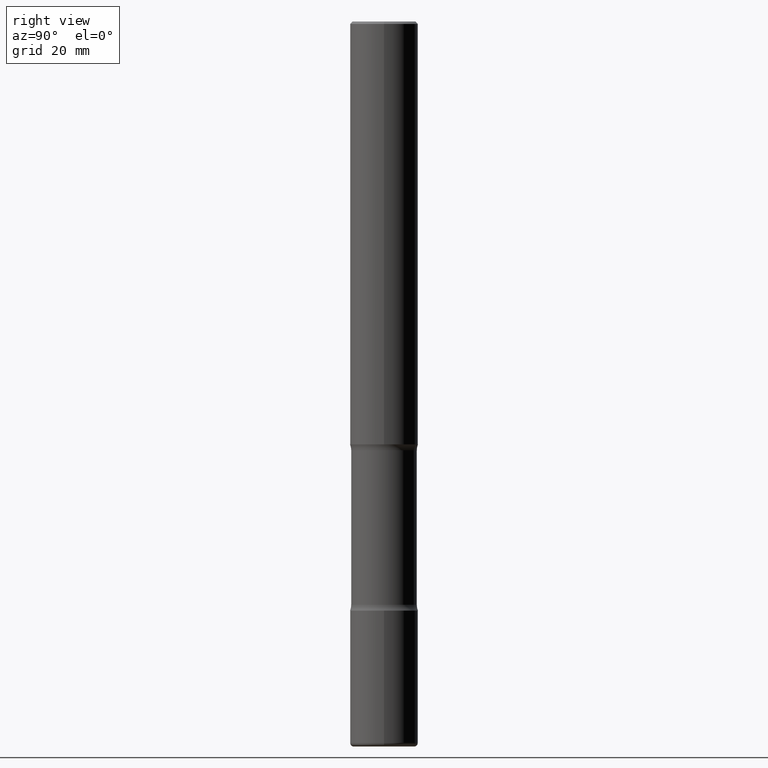
[diagram: clean part render]
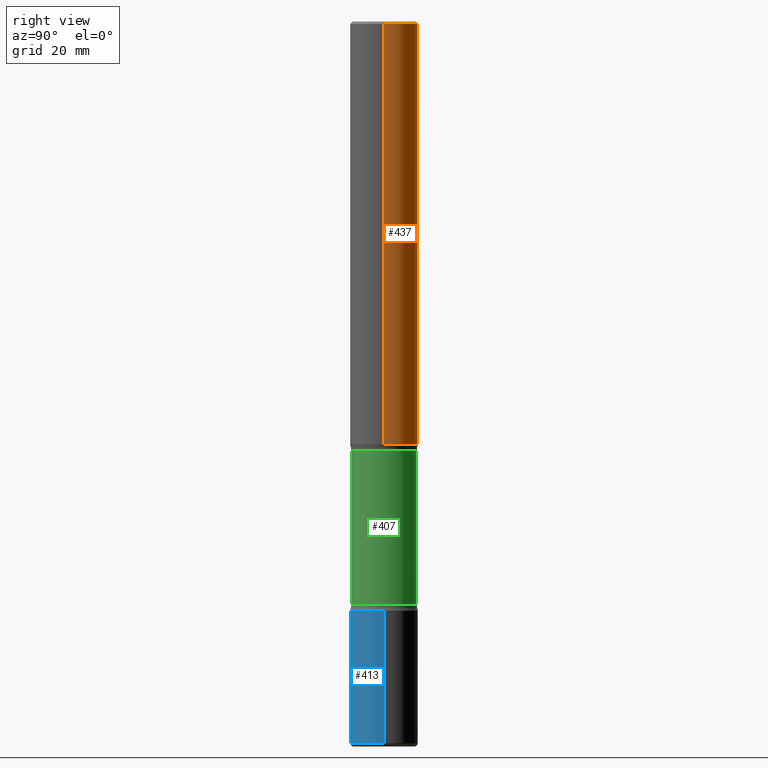
[diagram: same view with three faces highlighted in distinct colors, each labeled with its STEP entity id]
A machine part, right view with three faces highlighted in distinct colors.
Their STEP definitions:

[orange] entity #437 — the highlighted cylindrical surface (edge-blend (fillet) strip) has radius 7.1438 mm, axis along (-0, 0, 1).
#12 = DIRECTION ( 'NONE',  ( -2.445468806185136597E-29, 3.491481338843145583E-15, 1.000000000000000000 ) ) ;
#13 = EDGE_CURVE ( 'NONE', #408, #396, #46, .T. ) ;
#44 = EDGE_CURVE ( 'NONE', #408, #175, #240, .T. ) ;
#46 = LINE ( 'NONE', #394, #68 ) ;
#52 = DIRECTION ( 'NONE',  ( -2.445468806185136877E-29, 3.491481338843145188E-15, 1.000000000000000000 ) ) ;
#56 = EDGE_LOOP ( 'NONE', ( #438, #123, #425, #541 ) ) ;
#66 = AXIS2_PLACEMENT_3D ( 'NONE', #274, #12, #488 ) ;
#68 = VECTOR ( 'NONE', #52, 39.37007874015748143 ) ;
#79 = VERTEX_POINT ( 'NONE', #499 ) ;
#97 = CARTESIAN_POINT ( 'NONE',  ( 4.890937612370273159E-31, -6.982962677686291609E-17, -0.02000000000000000042 ) ) ;
#123 = ORIENTED_EDGE ( 'NONE', *, *, #341, .T. ) ;
#173 = CIRCLE ( 'NONE', #231, 0.2812500000000002220 ) ;
#175 = VERTEX_POINT ( 'NONE', #261 ) ;
#194 = CARTESIAN_POINT ( 'NONE',  ( 0.2812500000000002220, -1.999344688650107733E-15, -0.02000000000000000042 ) ) ;
#196 = DIRECTION ( 'NONE',  ( -2.445468806185136597E-29, 3.491481338843145583E-15, 1.000000000000000000 ) ) ;
#231 = AXIS2_PLACEMENT_3D ( 'NONE', #97, #196, #314 ) ;
#232 = DIRECTION ( 'NONE',  ( -2.445468806185136597E-29, 3.491481338843145583E-15, 1.000000000000000000 ) ) ;
#240 = CIRCLE ( 'NONE', #503, 0.2812500000000004441 ) ;
#241 = FACE_OUTER_BOUND ( 'NONE', #56, .T. ) ;
#261 = CARTESIAN_POINT ( 'NONE',  ( -0.2812500000000004441, -4.146605712038649025E-15, -3.500000000000000444 ) ) ;
#274 = CARTESIAN_POINT ( 'NONE',  ( 0.000000000000000000, 0.000000000000000000, 0.000000000000000000 ) ) ;
#314 = DIRECTION ( 'NONE',  ( 1.000000000000000000, -6.982962677686265133E-15, 0.000000000000000000 ) ) ;
#319 = DIRECTION ( 'NONE',  ( -2.445468806185136877E-29, 3.491481338843145188E-15, 1.000000000000000000 ) ) ;
#341 = EDGE_CURVE ( 'NONE', #175, #79, #351, .T. ) ;
#351 = LINE ( 'NONE', #439, #540 ) ;
#358 = CARTESIAN_POINT ( 'NONE',  ( 0.2812500000000004441, -1.418414293905027580E-14, -3.500000000000000444 ) ) ;
#373 = EDGE_CURVE ( 'NONE', #396, #79, #173, .T. ) ;
#394 = CARTESIAN_POINT ( 'NONE',  ( 0.2812500000000003331, -1.963958253099264484E-15, 1.371424718192608413E-29 ) ) ;
#396 = VERTEX_POINT ( 'NONE', #194 ) ;
#408 = VERTEX_POINT ( 'NONE', #358 ) ;
#425 = ORIENTED_EDGE ( 'NONE', *, *, #373, .F. ) ;
#437 = ADVANCED_FACE ( 'NONE', ( #241 ), #478, .T. ) ;
#438 = ORIENTED_EDGE ( 'NONE', *, *, #44, .T. ) ;
#439 = CARTESIAN_POINT ( 'NONE',  ( -0.2812500000000003331, 1.998401444325284139E-15, -1.383450494134193670E-29 ) ) ;
#478 = CYLINDRICAL_SURFACE ( 'NONE', #66, 0.2812500000000003331 ) ;
#479 = CARTESIAN_POINT ( 'NONE',  ( 8.559140821647978089E-29, -1.222018468595101092E-14, -3.500000000000000444 ) ) ;
#488 = DIRECTION ( 'NONE',  ( 1.000000000000000000, -6.982962677686265133E-15, 4.876176775795935232E-29 ) ) ;
#499 = CARTESIAN_POINT ( 'NONE',  ( -0.2812500000000002220, 1.894128626322401186E-15, -0.02000000000000000042 ) ) ;
#502 = DIRECTION ( 'NONE',  ( 1.000000000000000000, -6.982962677686265133E-15, 0.000000000000000000 ) ) ;
#503 = AXIS2_PLACEMENT_3D ( 'NONE', #479, #232, #502 ) ;
#540 = VECTOR ( 'NONE', #319, 39.37007874015748143 ) ;
#541 = ORIENTED_EDGE ( 'NONE', *, *, #13, .F. ) ;

[blue] entity #413 — the highlighted cylindrical surface (edge-blend (fillet) strip) has radius 7.1438 mm, axis along (-0, 0, 1).
#11 = CARTESIAN_POINT ( 'NONE',  ( -0.2812500000000003886, 1.998401444325284534E-15, -1.383450494134194230E-29 ) ) ;
#23 = CARTESIAN_POINT ( 'NONE',  ( 0.2812500000000003886, -1.963958253099265273E-15, 1.371424718192608693E-29 ) ) ;
#24 = VERTEX_POINT ( 'NONE', #170 ) ;
#35 = ORIENTED_EDGE ( 'NONE', *, *, #366, .F. ) ;
#58 = DIRECTION ( 'NONE',  ( -2.445468806185136597E-29, 3.491481338843145583E-15, 1.000000000000000000 ) ) ;
#60 = VERTEX_POINT ( 'NONE', #198 ) ;
#72 = EDGE_CURVE ( 'NONE', #154, #162, #402, .T. ) ;
#76 = EDGE_CURVE ( 'NONE', #154, #24, #400, .T. ) ;
#82 = AXIS2_PLACEMENT_3D ( 'NONE', #135, #405, #440 ) ;
#98 = CYLINDRICAL_SURFACE ( 'NONE', #201, 0.2812500000000003886 ) ;
#135 = CARTESIAN_POINT ( 'NONE',  ( 1.192166043015254091E-28, -1.702097152686033664E-14, -4.875000000000000000 ) ) ;
#154 = VERTEX_POINT ( 'NONE', #260 ) ;
#162 = VERTEX_POINT ( 'NONE', #303 ) ;
#170 = CARTESIAN_POINT ( 'NONE',  ( -0.2812500000000003331, -1.693415611555167306E-14, -4.875000000000000000 ) ) ;
#192 = EDGE_LOOP ( 'NONE', ( #371, #336, #226, #35 ) ) ;
#193 = AXIS2_PLACEMENT_3D ( 'NONE', #506, #451, #542 ) ;
#198 = CARTESIAN_POINT ( 'NONE',  ( 0.2812500000000003331, -1.898492977995960152E-14, -4.875000000000000000 ) ) ;
#201 = AXIS2_PLACEMENT_3D ( 'NONE', #434, #58, #360 ) ;
#209 = VECTOR ( 'NONE', #497, 39.37007874015748143 ) ;
#226 = ORIENTED_EDGE ( 'NONE', *, *, #508, .T. ) ;
#260 = CARTESIAN_POINT ( 'NONE',  ( -0.2812500000000005551, -1.884574214856829125E-14, -5.969999999999999751 ) ) ;
#303 = CARTESIAN_POINT ( 'NONE',  ( 0.2812500000000005551, -2.280810184599284737E-14, -5.969999999999999751 ) ) ;
#336 = ORIENTED_EDGE ( 'NONE', *, *, #72, .T. ) ;
#360 = DIRECTION ( 'NONE',  ( 1.000000000000000000, -6.982962677686266711E-15, 4.876176775795935232E-29 ) ) ;
#363 = FACE_OUTER_BOUND ( 'NONE', #192, .T. ) ;
#366 = EDGE_CURVE ( 'NONE', #24, #60, #527, .T. ) ;
#371 = ORIENTED_EDGE ( 'NONE', *, *, #76, .F. ) ;
#377 = DIRECTION ( 'NONE',  ( -2.445468806185136877E-29, 3.491481338843145188E-15, 1.000000000000000000 ) ) ;
#400 = LINE ( 'NONE', #11, #529 ) ;
#402 = CIRCLE ( 'NONE', #193, 0.2812500000000004441 ) ;
#405 = DIRECTION ( 'NONE',  ( -2.445468806185136597E-29, 3.491481338843145583E-15, 1.000000000000000000 ) ) ;
#413 = ADVANCED_FACE ( 'NONE', ( #363 ), #98, .T. ) ;
#434 = CARTESIAN_POINT ( 'NONE',  ( 0.000000000000000000, 0.000000000000000000, 0.000000000000000000 ) ) ;
#440 = DIRECTION ( 'NONE',  ( 1.000000000000000000, -6.982962677686268288E-15, 0.000000000000000000 ) ) ;
#451 = DIRECTION ( 'NONE',  ( -2.445468806185136597E-29, 3.491481338843145583E-15, 1.000000000000000000 ) ) ;
#497 = DIRECTION ( 'NONE',  ( -2.445468806185136877E-29, 3.491481338843145188E-15, 1.000000000000000000 ) ) ;
#506 = CARTESIAN_POINT ( 'NONE',  ( 1.459944877292526494E-28, -2.084414359289357934E-14, -5.969999999999999751 ) ) ;
#508 = EDGE_CURVE ( 'NONE', #162, #60, #543, .T. ) ;
#527 = CIRCLE ( 'NONE', #82, 0.2812500000000003331 ) ;
#529 = VECTOR ( 'NONE', #377, 39.37007874015748143 ) ;
#542 = DIRECTION ( 'NONE',  ( 1.000000000000000000, -6.982962677686265133E-15, 0.000000000000000000 ) ) ;
#543 = LINE ( 'NONE', #23, #209 ) ;

[green] entity #407 — the highlighted cylindrical surface (edge-blend (fillet) strip) has radius 6.8961 mm, axis along (0, -0, -1).
#1 = LINE ( 'NONE', #132, #150 ) ;
#18 = CARTESIAN_POINT ( 'NONE',  ( 1.895874366991938652E-15, 0.2714999999999830882, -4.826601265512413086 ) ) ;
#29 = VERTEX_POINT ( 'NONE', #411 ) ;
#87 = CARTESIAN_POINT ( 'NONE',  ( 8.565988301991969532E-29, -1.254885679582893261E-14, -3.548398734487589135 ) ) ;
#91 = LINE ( 'NONE', #424, #393 ) ;
#101 = CIRCLE ( 'NONE', #312, 0.2715000000000000191 ) ;
#107 = ORIENTED_EDGE ( 'NONE', *, *, #195, .T. ) ;
#110 = AXIS2_PLACEMENT_3D ( 'NONE', #554, #125, #306 ) ;
#125 = DIRECTION ( 'NONE',  ( 2.529525800553503552E-29, -3.371106938680637457E-15, -1.000000000000000000 ) ) ;
#132 = CARTESIAN_POINT ( 'NONE',  ( 1.895874366991969024E-15, 0.2714999999999791469, -6.000000000000001776 ) ) ;
#138 = CYLINDRICAL_SURFACE ( 'NONE', #272, 0.2715000000000000191 ) ;
#150 = VECTOR ( 'NONE', #171, 39.37007874015748143 ) ;
#171 = DIRECTION ( 'NONE',  ( 2.529525800553503552E-29, -3.371106938680637457E-15, -1.000000000000000000 ) ) ;
#186 = EDGE_CURVE ( 'NONE', #334, #29, #101, .T. ) ;
#195 = EDGE_CURVE ( 'NONE', #29, #537, #91, .T. ) ;
#202 = EDGE_CURVE ( 'NONE', #334, #514, #1, .T. ) ;
#227 = FACE_OUTER_BOUND ( 'NONE', #452, .T. ) ;
#242 = EDGE_CURVE ( 'NONE', #514, #537, #368, .T. ) ;
#262 = DIRECTION ( 'NONE',  ( 6.982962677686266711E-15, 1.000000000000000000, -4.024822090113094462E-15 ) ) ;
#272 = AXIS2_PLACEMENT_3D ( 'NONE', #524, #276, #321 ) ;
#276 = DIRECTION ( 'NONE',  ( 2.529525800553503552E-29, -3.371106938680637457E-15, -1.000000000000000000 ) ) ;
#306 = DIRECTION ( 'NONE',  ( 6.982962677686266711E-15, 1.000000000000000000, -4.024822090113095251E-15 ) ) ;
#312 = AXIS2_PLACEMENT_3D ( 'NONE', #87, #460, #262 ) ;
#321 = DIRECTION ( 'NONE',  ( 6.982962677686265133E-15, 1.000000000000000000, -4.024822090113094462E-15 ) ) ;
#334 = VERTEX_POINT ( 'NONE', #347 ) ;
#347 = CARTESIAN_POINT ( 'NONE',  ( 1.895874366991907098E-15, 0.2714999999999874736, -3.548398734487590467 ) ) ;
#368 = CIRCLE ( 'NONE', #110, 0.2714999999999999636 ) ;
#389 = DIRECTION ( 'NONE',  ( 2.529525800553503552E-29, -3.371106938680637457E-15, -1.000000000000000000 ) ) ;
#393 = VECTOR ( 'NONE', #389, 39.37007874015748143 ) ;
#406 = ORIENTED_EDGE ( 'NONE', *, *, #202, .F. ) ;
#407 = ADVANCED_FACE ( 'NONE', ( #227 ), #138, .T. ) ;
#411 = CARTESIAN_POINT ( 'NONE',  ( -1.896070134134024035E-15, -0.2715000000000126201, -3.548398734487588246 ) ) ;
#424 = CARTESIAN_POINT ( 'NONE',  ( -1.862625206394822961E-15, -0.2715000000000208358, -5.999999999999999112 ) ) ;
#441 = ORIENTED_EDGE ( 'NONE', *, *, #186, .T. ) ;
#452 = EDGE_LOOP ( 'NONE', ( #441, #107, #523, #406 ) ) ;
#460 = DIRECTION ( 'NONE',  ( 2.529525800553503552E-29, -3.371106938680637457E-15, -1.000000000000000000 ) ) ;
#514 = VERTEX_POINT ( 'NONE', #18 ) ;
#523 = ORIENTED_EDGE ( 'NONE', *, *, #242, .F. ) ;
#524 = CARTESIAN_POINT ( 'NONE',  ( 1.476737695577523311E-28, -2.081346683287605506E-14, -6.000000000000000888 ) ) ;
#537 = VERTEX_POINT ( 'NONE', #545 ) ;
#545 = CARTESIAN_POINT ( 'NONE',  ( -1.896070134133989325E-15, -0.2715000000000168390, -4.826601265512411310 ) ) ;
#554 = CARTESIAN_POINT ( 'NONE',  ( 1.179923458255204953E-28, -1.685781421720586347E-14, -4.826601265512412198 ) ) ;